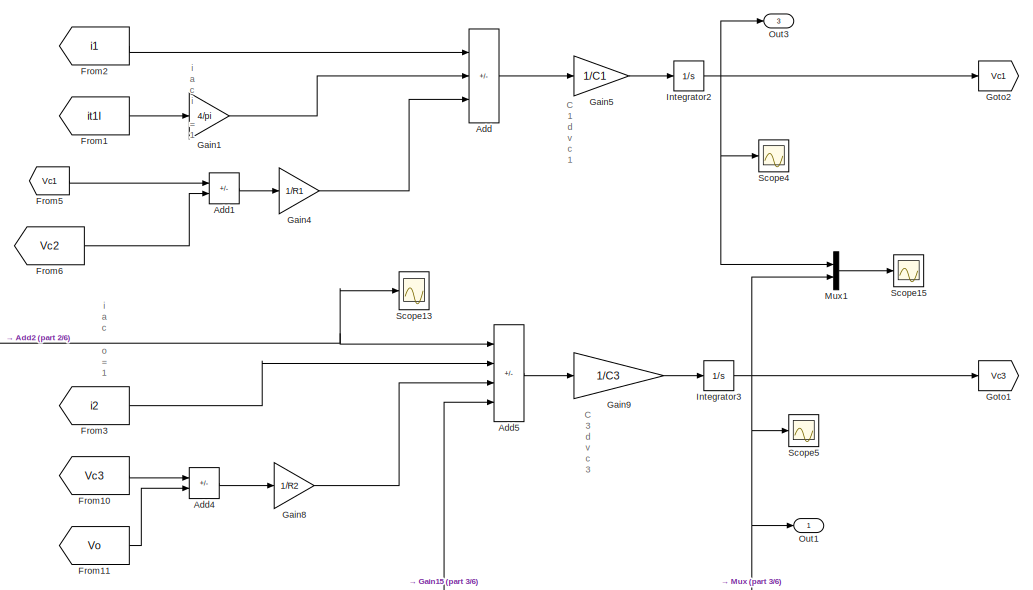
[diagram: root canvas - part 1/6, top right region]
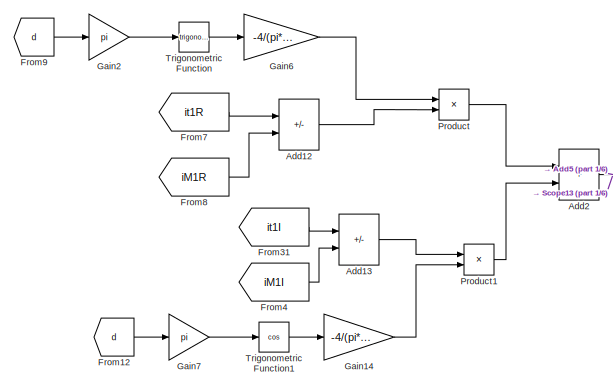
[diagram: root canvas - part 2/6, top center region]
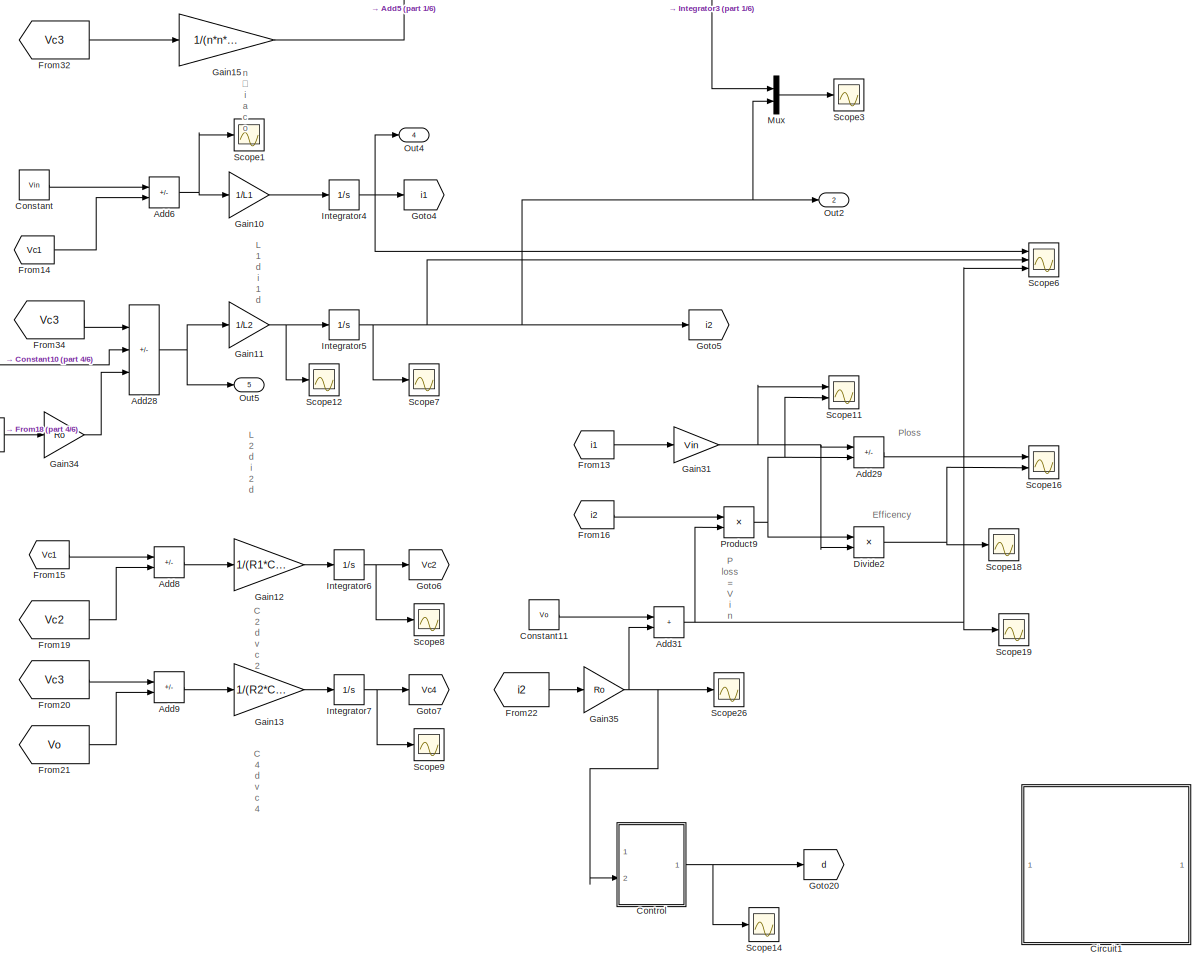
[diagram: root canvas - part 3/6, middle right region]
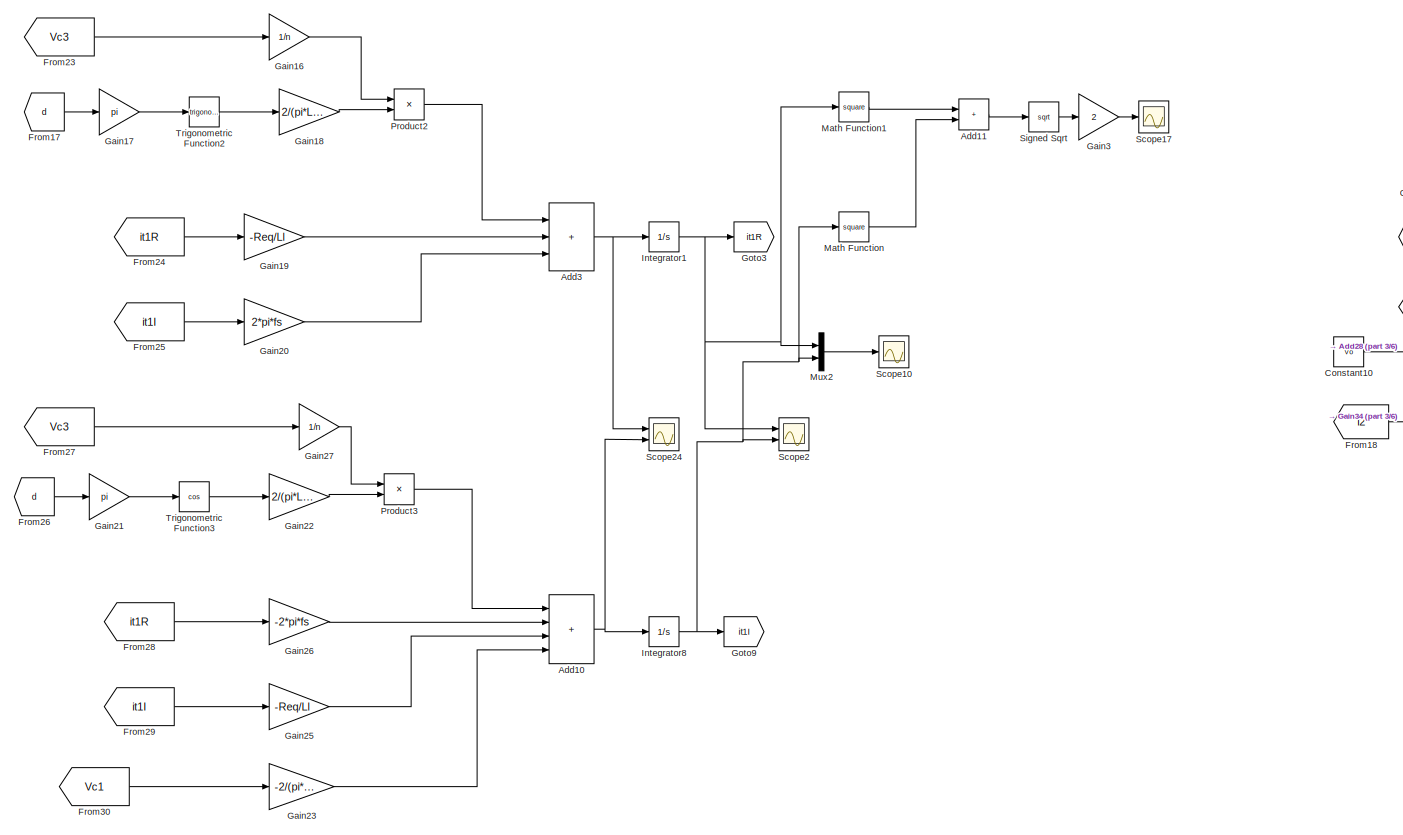
[diagram: root canvas - part 4/6, middle left region]
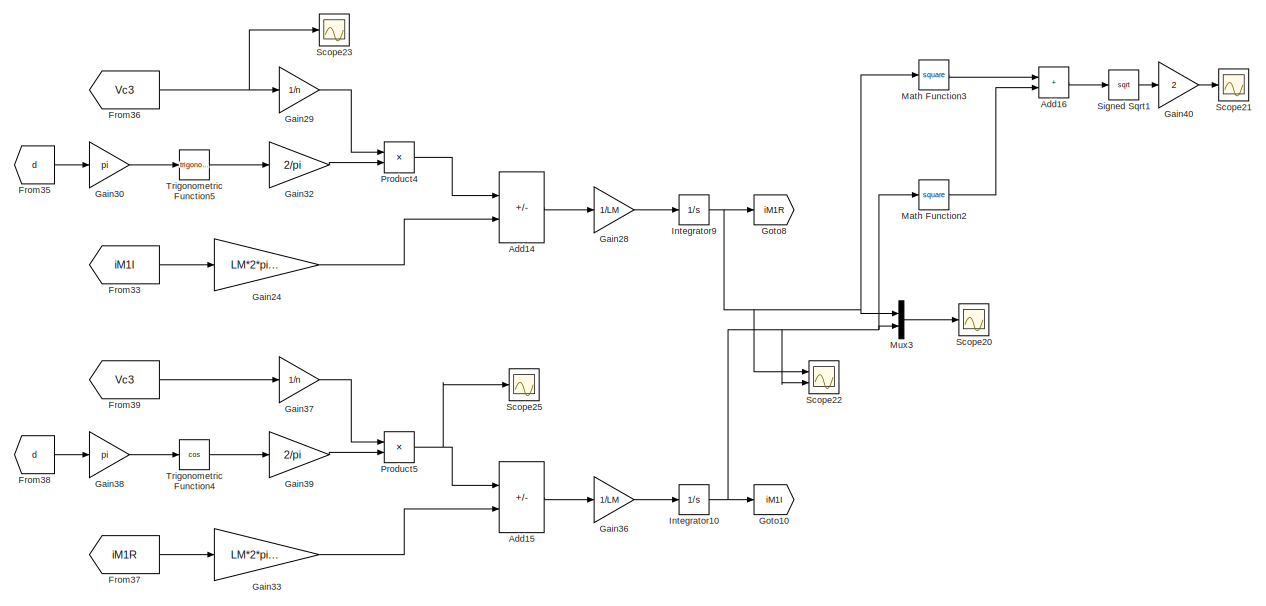
[diagram: root canvas - part 5/6, middle left region]
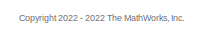
[diagram: root canvas - part 6/6, bottom right region]
MODEL slx_12599703ccd6
KIND model
CONFIG AbsTol = 1e-3
CONFIG EnableMultiTasking = on
CONFIG FixedStep = auto
CONFIG MaxStep = 1e-5
CONFIG MinStep = auto
CONFIG RelTol = 1e-3
CONFIG SampleTimeConstraint = Unconstrained
CONFIG SolverName = ode23tb
CONFIG StartTime = 0.0
CONFIG StopTime = Ts
BLOCK [Sum] Add
  IconShape = rectangular
  Inputs = ++-
  Ports = [3, 1]
BLOCK [Sum] Add1
  IconShape = rectangular
  Inputs = +-
  Ports = [2, 1]
BLOCK [Sum] Add10
  IconShape = rectangular
  Inputs = ++++
  Ports = [4, 1]
BLOCK [Sum] Add11
  IconShape = rectangular
  Ports = [2, 1]
BLOCK [Sum] Add12
  IconShape = rectangular
  Inputs = +-
  Ports = [2, 1]
BLOCK [Sum] Add13
  IconShape = rectangular
  Inputs = +-
  Ports = [2, 1]
BLOCK [Sum] Add14
  IconShape = rectangular
  Inputs = -+
  Ports = [2, 1]
BLOCK [Sum] Add15
  IconShape = rectangular
  Inputs = --
  Ports = [2, 1]
BLOCK [Sum] Add16
  IconShape = rectangular
  Ports = [2, 1]
BLOCK [Sum] Add2
  IconShape = rectangular
  Ports = [2, 1]
BLOCK [Sum] Add28
  IconShape = rectangular
  Inputs = +--
  Ports = [3, 1]
BLOCK [Sum] Add29
  IconShape = rectangular
  Inputs = +-
  Ports = [2, 1]
BLOCK [Sum] Add3
  IconShape = rectangular
  Inputs = +++
  Ports = [3, 1]
BLOCK [Sum] Add31
  IconShape = rectangular
  Ports = [2, 1]
BLOCK [Sum] Add4
  IconShape = rectangular
  Inputs = +-
  Ports = [2, 1]
BLOCK [Sum] Add5
  IconShape = rectangular
  Inputs = +---
  Ports = [4, 1]
BLOCK [Sum] Add6
  IconShape = rectangular
  Inputs = +-
  Ports = [2, 1]
BLOCK [Sum] Add8
  IconShape = rectangular
  Inputs = +-
  Ports = [2, 1]
BLOCK [Sum] Add9
  IconShape = rectangular
  Inputs = +-
  Ports = [2, 1]
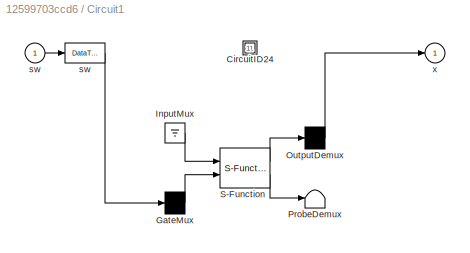
BLOCK [SubSystem] Circuit1
  CopyFcn = plecs('sl', 203);
  DeleteFcn = plecs('sl', 205);
  DestroyFcn = plecs('sl', 207);
  ErrorFcn = plerrorfcn
  InitFcn = plecs('sl', 214);
  LoadFcn = plecs('sl', 200);
  NameChangeFcn = plecs('sl', 210);
  OpenFcn = plecs('sl', 202);
  Ports = [1, 1]
  PostSaveFcn = plecs('sl', 201);
  PreCopyFcn = plecs('sl', 216);
  PreSaveFcn = plecs('sl', 211);
  RequestExecContextInheritance = off
  StartFcn = plecs('sl', 208);
  StopFcn = plecs('sl', 209);
  UndoDeleteFcn = plecs('sl', 206);
BLOCK [SubSystem] Circuit1/ CircuitID24 
  Ports = []
  RequestExecContextInheritance = off
BLOCK [Mux] Circuit1/ GateMux 
  Inputs = [ 8 ]
  Ports = [1, 1]
BLOCK [Ground] Circuit1/ InputMux 
BLOCK [Demux] Circuit1/ OutputDemux 
  Outputs = [ 1 ]
  Ports = [1, 1]
BLOCK [Terminator] Circuit1/ ProbeDemux 
BLOCK [S-Function] Circuit1/ S-Function 
  EnableBusSupport = off
  FunctionName = plecs
  Ports = [2, 2]
  SFcnIsStateOwnerBlock = off
  SFunctionDeploymentMode = off
BLOCK [DataTypeConversion] Circuit1/ sw 
BLOCK [Inport] Circuit1/sw
  PortDimensions = 8
BLOCK [Outport] Circuit1/x
  PortDimensions = 1
BLOCK [Constant] Constant
  Value = Vin
BLOCK [Constant] Constant10
  Value = Vo
BLOCK [Constant] Constant11
  Value = Vo
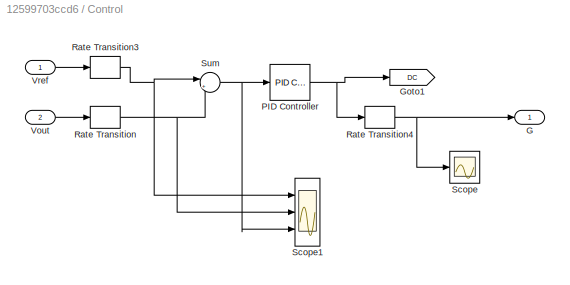
BLOCK [SubSystem] Control
  Ports = [2, 1]
  RequestExecContextInheritance = off
BLOCK [Outport] Control/G
  VectorParamsAs1DForOutWhenUnconnected = off
BLOCK [Goto] Control/Goto1
  GotoTag = DC
  TagVisibility = global
BLOCK [Reference] Control/PID Controller  REF=slpidlib/PID Controller
  Ports = [1, 1]
  SourceBlock = slpidlib/PID Controller
  SourceProductBaseCode = SL
  SourceType = PID 1dof
BLOCK [RateTransition] Control/Rate Transition
  OutPortSampleTime = 5e-8
BLOCK [RateTransition] Control/Rate Transition3
  OutPortSampleTime = 5e-8
BLOCK [RateTransition] Control/Rate Transition4
BLOCK [Scope] Control/Scope
  Floating = off
  NumInputPorts = 1
  Ports = [1]
  ScopeSpecificationString = Simulink.scopes.TimeScopeBlockCfg('CurrentConfiguration', extmgr.ConfigurationSet(extmgr.Configuration('Core','General UI',true),extmgr.Configuration('Core','Source UI',true),extmgr.Configuration('Sources','WiredSimulink',true,'DataLoggingVariableName','ScopeData1'),extmgr.Configuration('Visuals','Time Domain',true,'SerializedDisplays',{struct('MinYLimReal','-0.04578','MaxYLimReal','0.412','YLabel...<+1468ch>
BLOCK [Scope] Control/Scope1
  Floating = off
  NumInputPorts = 3
  Ports = [3]
  ScopeSpecificationString = Simulink.scopes.TimeScopeBlockCfg('CurrentConfiguration', extmgr.ConfigurationSet(extmgr.Configuration('Core','General UI',true),extmgr.Configuration('Core','Source UI',true),extmgr.Configuration('Sources','WiredSimulink',true,'DataLoggingVariableName','ScopeData2'),extmgr.Configuration('Visuals','Time Domain',true,'SerializedDisplays',{struct('MinYLimReal','-1.00000','MaxYLimReal','1.00000','YLab...<+2820ch>
BLOCK [Sum] Control/Sum
  Inputs = |+-
  Ports = [2, 1]
BLOCK [Inport] Control/Vout
  Port = 2
BLOCK [Inport] Control/Vref
BLOCK [Product] Divide2
  Inputs = */
  Ports = [2, 1]
BLOCK [From] From1
  GotoTag = it1I
BLOCK [From] From10
  GotoTag = Vc3
BLOCK [From] From11
  GotoTag = Vo
BLOCK [From] From12
  GotoTag = d
BLOCK [From] From13
  GotoTag = i1
BLOCK [From] From14
  GotoTag = Vc1
BLOCK [From] From15
  GotoTag = Vc1
BLOCK [From] From16
  GotoTag = i2
BLOCK [From] From17
  GotoTag = d
BLOCK [From] From18
  GotoTag = i2
BLOCK [From] From19
  GotoTag = Vc2
BLOCK [From] From2
  GotoTag = i1
BLOCK [From] From20
  GotoTag = Vc3
BLOCK [From] From21
  GotoTag = Vo
BLOCK [From] From22
  GotoTag = i2
BLOCK [From] From23
  GotoTag = Vc3
BLOCK [From] From24
  GotoTag = it1R
BLOCK [From] From25
  GotoTag = it1I
BLOCK [From] From26
  GotoTag = d
BLOCK [From] From27
  GotoTag = Vc3
BLOCK [From] From28
  GotoTag = it1R
BLOCK [From] From29
  GotoTag = it1I
BLOCK [From] From3
  GotoTag = i2
BLOCK [From] From30
  GotoTag = Vc1
BLOCK [From] From31
  GotoTag = it1I
BLOCK [From] From32
  GotoTag = Vc3
BLOCK [From] From33
  GotoTag = iM1I
BLOCK [From] From34
  GotoTag = Vc3
BLOCK [From] From35
  GotoTag = d
BLOCK [From] From36
  GotoTag = Vc3
BLOCK [From] From37
  GotoTag = iM1R
BLOCK [From] From38
  GotoTag = d
BLOCK [From] From39
  GotoTag = Vc3
BLOCK [From] From4
  GotoTag = iM1I
BLOCK [From] From5
  GotoTag = Vc1
BLOCK [From] From6
  GotoTag = Vc2
BLOCK [From] From7
  GotoTag = it1R
BLOCK [From] From8
  GotoTag = iM1R
BLOCK [From] From9
  GotoTag = d
BLOCK [Gain] Gain1
  Gain = 4/pi
BLOCK [Gain] Gain10
  Gain = 1/L1
BLOCK [Gain] Gain11
  Gain = 1/L2
BLOCK [Gain] Gain12
  Gain = 1/(R1*C2)
BLOCK [Gain] Gain13
  Gain = 1/(R2*C4)
BLOCK [Gain] Gain14
  Gain = -4/(pi*n)
BLOCK [Gain] Gain15
  Gain = 1/(n*n*RM)
BLOCK [Gain] Gain16
  Gain = 1/n
BLOCK [Gain] Gain17
  Gain = pi
BLOCK [Gain] Gain18
  Gain = 2/(pi*Ll)
BLOCK [Gain] Gain19
  Gain = -Req/Ll
BLOCK [Gain] Gain2
  Gain = pi
BLOCK [Gain] Gain20
  Gain = 2*pi*fs
BLOCK [Gain] Gain21
  Gain = pi
BLOCK [Gain] Gain22
  Gain = 2/(pi*Ll)
BLOCK [Gain] Gain23
  Gain = -2/(pi*Ll)
BLOCK [Gain] Gain24
  Gain = LM*2*pi*fs
BLOCK [Gain] Gain25
  Gain = -Req/Ll
BLOCK [Gain] Gain26
  Gain = -2*pi*fs
BLOCK [Gain] Gain27
  Gain = 1/n
BLOCK [Gain] Gain28
  Gain = 1/LM
BLOCK [Gain] Gain29
  Gain = 1/n
BLOCK [Gain] Gain3
  Gain = 2
BLOCK [Gain] Gain30
  Gain = pi
BLOCK [Gain] Gain31
  Gain = Vin
BLOCK [Gain] Gain32
  Gain = 2/pi
BLOCK [Gain] Gain33
  Gain = LM*2*pi*fs
BLOCK [Gain] Gain34
  Gain = Ro
BLOCK [Gain] Gain35
  Gain = Ro
BLOCK [Gain] Gain36
  Gain = 1/LM
BLOCK [Gain] Gain37
  Gain = 1/n
BLOCK [Gain] Gain38
  Gain = pi
BLOCK [Gain] Gain39
  Gain = 2/pi
BLOCK [Gain] Gain4
  Gain = 1/R1
BLOCK [Gain] Gain40
  Gain = 2
BLOCK [Gain] Gain5
  Gain = 1/C1
BLOCK [Gain] Gain6
  Gain = -4/(pi*n)
BLOCK [Gain] Gain7
  Gain = pi
BLOCK [Gain] Gain8
  Gain = 1/R2
BLOCK [Gain] Gain9
  Gain = 1/C3
BLOCK [Goto] Goto1
  GotoTag = Vc3
BLOCK [Goto] Goto10
  GotoTag = iM1I
BLOCK [Goto] Goto2
  GotoTag = Vc1
BLOCK [Goto] Goto20
  GotoTag = d
BLOCK [Goto] Goto3
  GotoTag = it1R
BLOCK [Goto] Goto4
  GotoTag = i1
BLOCK [Goto] Goto5
  GotoTag = i2
BLOCK [Goto] Goto6
  GotoTag = Vc2
BLOCK [Goto] Goto7
  GotoTag = Vc4
BLOCK [Goto] Goto8
  GotoTag = iM1R
BLOCK [Goto] Goto9
  GotoTag = it1I
BLOCK [Integrator] Integrator1
  Ports = [1, 1]
BLOCK [Integrator] Integrator10
  Ports = [1, 1]
BLOCK [Integrator] Integrator2
  InitialCondition = Vin
  Ports = [1, 1]
BLOCK [Integrator] Integrator3
  InitialCondition = Vo
  Ports = [1, 1]
BLOCK [Integrator] Integrator4
  Ports = [1, 1]
BLOCK [Integrator] Integrator5
  Ports = [1, 1]
BLOCK [Integrator] Integrator6
  InitialCondition = Vin
  Ports = [1, 1]
BLOCK [Integrator] Integrator7
  InitialCondition = Vo
  Ports = [1, 1]
BLOCK [Integrator] Integrator8
  Ports = [1, 1]
BLOCK [Integrator] Integrator9
  Ports = [1, 1]
BLOCK [Math] Math Function
  Operator = square
  Ports = [1, 1]
  SignedPower = on
BLOCK [Math] Math Function1
  Operator = square
  Ports = [1, 1]
  SignedPower = on
BLOCK [Math] Math Function2
  Operator = square
  Ports = [1, 1]
  SignedPower = on
BLOCK [Math] Math Function3
  Operator = square
  Ports = [1, 1]
  SignedPower = on
BLOCK [Mux] Mux
  DisplayOption = bar
  Inputs = 2
  Ports = [2, 1]
BLOCK [Mux] Mux1
  DisplayOption = bar
  Inputs = 2
  Ports = [2, 1]
BLOCK [Mux] Mux2
  DisplayOption = bar
  Inputs = 2
  Ports = [2, 1]
BLOCK [Mux] Mux3
  DisplayOption = bar
  Inputs = 2
  Ports = [2, 1]
BLOCK [Outport] Out1
BLOCK [Outport] Out2
  Port = 2
BLOCK [Outport] Out3
  Port = 3
BLOCK [Outport] Out4
  Port = 4
BLOCK [Outport] Out5
  Port = 5
BLOCK [Product] Product
  Ports = [2, 1]
  RndMeth = Zero
BLOCK [Product] Product1
  Ports = [2, 1]
  RndMeth = Zero
BLOCK [Product] Product2
  Ports = [2, 1]
  RndMeth = Zero
BLOCK [Product] Product3
  Ports = [2, 1]
  RndMeth = Zero
BLOCK [Product] Product4
  Ports = [2, 1]
  RndMeth = Zero
BLOCK [Product] Product5
  Ports = [2, 1]
  RndMeth = Zero
BLOCK [Product] Product9
  Ports = [2, 1]
  RndMeth = Zero
BLOCK [Scope] Scope1
  Floating = off
  NumInputPorts = 1
  Ports = [1]
  ScopeSpecificationString = C++SS(StrPVP('Location','[5, 52, 1685, 1019]'),StrPVP('Open','off'),StrPVP('ZoomMode','xonly'),MxPVP('AxesTitles',54,'struct(''axes1'',''%<SignalLabel>'')'),MxPVP('ScopeGraphics',57,'struct(''FigureColor'',''[0.5 0.5 0.5]'',''AxesColor'',''[0 0 0]'',''AxesTickColor'',''[1 1 1]'',''LineColors'',''[1 1 0;1 0 1;0 1 1;1 0 0;0 1 0;0 0 1]'',''LineStyles'',''-|-|-|-|-|-'',''LineWidths'',''[0.5 0.5 0.5 0....<+266ch>
BLOCK [Scope] Scope10
  Floating = off
  NumInputPorts = 1
  Ports = [1]
  ScopeSpecificationString = C++SS(StrPVP('Location','[395, 52, 1675, 959]'),StrPVP('Open','off'),StrPVP('ZoomMode','xonly'),MxPVP('AxesTitles',54,'struct(''axes1'',''%<SignalLabel>'')'),MxPVP('ScopeGraphics',57,'struct(''FigureColor'',''[0.5 0.5 0.5]'',''AxesColor'',''[0 0 0]'',''AxesTickColor'',''[1 1 1]'',''LineColors'',''[1 1 0;1 0 1;0 1 1;1 0 0;0 1 0;0 0 1]'',''LineStyles'',''-|-|-|-|-|-'',''LineWidths'',''[0.5 0.5 0.5 0...<+299ch>
BLOCK [Scope] Scope11
  Floating = off
  NumInputPorts = 2
  Ports = [2]
  ScopeSpecificationString = Simulink.scopes.TimeScopeBlockCfg('CurrentConfiguration', extmgr.ConfigurationSet(extmgr.Configuration('Core','General UI',true),extmgr.Configuration('Core','Source UI',true),extmgr.Configuration('Sources','WiredSimulink',true,'DataLoggingVariableName','ScopeData10','DataLoggingSaveFormat','StructureWithTime','DataLoggingDecimation','1','DataLoggingDecimateData',true),extmgr.Configuration('Visuals...<+2331ch>
BLOCK [Scope] Scope12
  Floating = off
  NumInputPorts = 1
  Ports = [1]
  ScopeSpecificationString = C++SS(StrPVP('Location','[395, 52, 1675, 959]'),StrPVP('Open','off'),StrPVP('ZoomMode','yonly'),MxPVP('AxesTitles',54,'struct(''axes1'',''%<SignalLabel>'')'),MxPVP('ScopeGraphics',57,'struct(''FigureColor'',''[0.5 0.5 0.5]'',''AxesColor'',''[0 0 0]'',''AxesTickColor'',''[1 1 1]'',''LineColors'',''[1 1 0;1 0 1;0 1 1;1 0 0;0 1 0;0 0 1]'',''LineStyles'',''-|-|-|-|-|-'',''LineWidths'',''[0.5 0.5 0.5 0...<+385ch>
BLOCK [Scope] Scope13
  Floating = off
  NumInputPorts = 1
  Ports = [1]
  ScopeSpecificationString = C++SS(StrPVP('Location','[5, 52, 1685, 1019]'),StrPVP('Open','off'),StrPVP('ZoomMode','xonly'),MxPVP('AxesTitles',54,'struct(''axes1'',''%<SignalLabel>'')'),MxPVP('ScopeGraphics',57,'struct(''FigureColor'',''[0.5 0.5 0.5]'',''AxesColor'',''[0 0 0]'',''AxesTickColor'',''[1 1 1]'',''LineColors'',''[1 1 0;1 0 1;0 1 1;1 0 0;0 1 0;0 0 1]'',''LineStyles'',''-|-|-|-|-|-'',''LineWidths'',''[0.5 0.5 0.5 0....<+299ch>
BLOCK [Scope] Scope14
  Floating = off
  NumInputPorts = 1
  Ports = [1]
  ScopeSpecificationString = Simulink.scopes.TimeScopeBlockCfg('CurrentConfiguration', extmgr.ConfigurationSet(extmgr.Configuration('Core','General UI',true),extmgr.Configuration('Core','Source UI',true),extmgr.Configuration('Sources','WiredSimulink',true,'DataLoggingVariableName','ScopeData1'),extmgr.Configuration('Visuals','Time Domain',true,'SerializedDisplays',{struct('MinYLimReal','-1.00000','MaxYLimReal','1.00000','YLab...<+1984ch>
BLOCK [Scope] Scope15
  Floating = off
  NumInputPorts = 1
  Ports = [1]
  ScopeSpecificationString = Simulink.scopes.TimeScopeBlockCfg('CurrentConfiguration', extmgr.ConfigurationSet(extmgr.Configuration('Core','General UI',true),extmgr.Configuration('Core','Source UI',true),extmgr.Configuration('Sources','WiredSimulink',true,'DataLoggingVariableName','ScopeData14','DataLoggingSaveFormat','StructureWithTime','DataLoggingDecimation','1','DataLoggingDecimateData',true),extmgr.Configuration('Visuals...<+1697ch>
BLOCK [Scope] Scope16
  Floating = off
  NumInputPorts = 2
  Ports = [2]
  ScopeSpecificationString = Simulink.scopes.TimeScopeBlockCfg('CurrentConfiguration', extmgr.ConfigurationSet(extmgr.Configuration('Core','General UI',true),extmgr.Configuration('Core','Source UI',true),extmgr.Configuration('Sources','WiredSimulink',true,'DataLoggingVariableName','ScopeData17','DataLoggingSaveFormat','StructureWithTime','DataLoggingDecimation','1','DataLoggingDecimateData',true),extmgr.Configuration('Visuals...<+2335ch>
BLOCK [Scope] Scope17
  Floating = off
  NumInputPorts = 1
  Ports = [1]
  ScopeSpecificationString = Simulink.scopes.TimeScopeBlockCfg('CurrentConfiguration', extmgr.ConfigurationSet(extmgr.Configuration('Core','General UI',true),extmgr.Configuration('Core','Source UI',true),extmgr.Configuration('Sources','WiredSimulink',true,'DataLoggingVariableName','ScopeData15','DataLoggingSaveFormat','StructureWithTime','DataLoggingDecimation','1','DataLoggingDecimateData',true),extmgr.Configuration('Visuals...<+1641ch>
BLOCK [Scope] Scope18
  Floating = off
  NumInputPorts = 1
  Ports = [1]
  ScopeSpecificationString = Simulink.scopes.TimeScopeBlockCfg('CurrentConfiguration', extmgr.ConfigurationSet(extmgr.Configuration('Core','General UI',true),extmgr.Configuration('Core','Source UI',true),extmgr.Configuration('Sources','WiredSimulink',true,'DataLoggingVariableName','ScopeData18','DataLoggingSaveFormat','StructureWithTime','DataLoggingDecimation','1','DataLoggingDecimateData',true),extmgr.Configuration('Visuals...<+1647ch>
BLOCK [Scope] Scope19
  Floating = off
  NumInputPorts = 1
  Ports = [1]
  ScopeSpecificationString = Simulink.scopes.TimeScopeBlockCfg('CurrentConfiguration', extmgr.ConfigurationSet(extmgr.Configuration('Core','General UI',true),extmgr.Configuration('Core','Source UI',true),extmgr.Configuration('Sources','WiredSimulink',true,'DataLoggingVariableName','ScopeData19','DataLoggingSaveFormat','StructureWithTime','DataLoggingDecimation','1','DataLoggingDecimateData',true),extmgr.Configuration('Visuals...<+879ch>
BLOCK [Scope] Scope2
  Floating = off
  NumInputPorts = 2
  Ports = [2]
  ScopeSpecificationString = C++SS(StrPVP('Location','[5, 52, 1685, 1019]'),StrPVP('Open','off'),StrPVP('ZoomMode','yonly'),MxPVP('AxesTitles',54,'struct(''axes1'',''%<SignalLabel>'',''axes2'',''%<SignalLabel>'')'),MxPVP('ScopeGraphics',57,'struct(''FigureColor'',''[0.5 0.5 0.5]'',''AxesColor'',''[0 0 0]'',''AxesTickColor'',''[1 1 1]'',''LineColors'',''[1 1 0;1 0 1;0 1 1;1 0 0;0 1 0;0 0 1]'',''LineStyles'',''-|-|-|-|-|-'',''L...<+371ch>
BLOCK [Scope] Scope20
  Floating = off
  NumInputPorts = 1
  Ports = [1]
  ScopeSpecificationString = C++SS(StrPVP('Location','[395, 52, 1675, 959]'),StrPVP('Open','off'),MxPVP('AxesTitles',54,'struct(''axes1'',''%<SignalLabel>'')'),MxPVP('ScopeGraphics',57,'struct(''FigureColor'',''[0.5 0.5 0.5]'',''AxesColor'',''[0 0 0]'',''AxesTickColor'',''[1 1 1]'',''LineColors'',''[1 1 0;1 0 1;0 1 1;1 0 0;0 1 0;0 0 1]'',''LineStyles'',''-|-|-|-|-|-'',''LineWidths'',''[0.5 0.5 0.5 0.5 0.5 0.5]'',''MarkerStyle...<+273ch>
BLOCK [Scope] Scope21
  Floating = off
  NumInputPorts = 1
  Ports = [1]
  ScopeSpecificationString = C++SS(StrPVP('Location','[395, 52, 1675, 959]'),StrPVP('Open','off'),StrPVP('ZoomMode','xonly'),MxPVP('AxesTitles',54,'struct(''axes1'',''%<SignalLabel>'')'),MxPVP('ScopeGraphics',57,'struct(''FigureColor'',''[0.5 0.5 0.5]'',''AxesColor'',''[0 0 0]'',''AxesTickColor'',''[1 1 1]'',''LineColors'',''[1 1 0;1 0 1;0 1 1;1 0 0;0 1 0;0 0 1]'',''LineStyles'',''-|-|-|-|-|-'',''LineWidths'',''[0.5 0.5 0.5 0...<+300ch>
BLOCK [Scope] Scope22
  Floating = off
  NumInputPorts = 2
  Ports = [2]
  ScopeSpecificationString = Simulink.scopes.TimeScopeBlockCfg('CurrentConfiguration', extmgr.ConfigurationSet(extmgr.Configuration('Core','General UI',true),extmgr.Configuration('Core','Source UI',true),extmgr.Configuration('Sources','WiredSimulink',true,'DataLoggingVariableName','ScopeData21','DataLoggingSaveFormat','StructureWithTime','DataLoggingDecimation','1','DataLoggingDecimateData',true),extmgr.Configuration('Visuals...<+2346ch>
BLOCK [Scope] Scope23
  Floating = off
  NumInputPorts = 1
  Ports = [1]
  ScopeSpecificationString = C++SS(StrPVP('Location','[395, 52, 1675, 959]'),StrPVP('Open','off'),StrPVP('ZoomMode','yonly'),MxPVP('AxesTitles',54,'struct(''axes1'',''%<SignalLabel>'')'),MxPVP('ScopeGraphics',57,'struct(''FigureColor'',''[0.5 0.5 0.5]'',''AxesColor'',''[0 0 0]'',''AxesTickColor'',''[1 1 1]'',''LineColors'',''[1 1 0;1 0 1;0 1 1;1 0 0;0 1 0;0 0 1]'',''LineStyles'',''-|-|-|-|-|-'',''LineWidths'',''[0.5 0.5 0.5 0...<+350ch>
BLOCK [Scope] Scope24
  Floating = off
  NumInputPorts = 2
  Ports = [2]
  ScopeSpecificationString = C++SS(StrPVP('Location','[1, 52, 1681, 1019]'),StrPVP('Open','off'),StrPVP('ZoomMode','yonly'),MxPVP('AxesTitles',54,'struct(''axes1'',''%<SignalLabel>'',''axes2'',''%<SignalLabel>'')'),MxPVP('ScopeGraphics',57,'struct(''FigureColor'',''[0.5 0.5 0.5]'',''AxesColor'',''[0 0 0]'',''AxesTickColor'',''[1 1 1]'',''LineColors'',''[1 1 0;1 0 1;0 1 1;1 0 0;0 1 0;0 0 1]'',''LineStyles'',''-|-|-|-|-|-'',''L...<+372ch>
BLOCK [Scope] Scope25
  Floating = off
  NumInputPorts = 1
  Ports = [1]
  ScopeSpecificationString = C++SS(StrPVP('Location','[395, 52, 1675, 959]'),StrPVP('Open','off'),MxPVP('AxesTitles',54,'struct(''axes1'',''%<SignalLabel>'')'),MxPVP('ScopeGraphics',57,'struct(''FigureColor'',''[0.5 0.5 0.5]'',''AxesColor'',''[0 0 0]'',''AxesTickColor'',''[1 1 1]'',''LineColors'',''[1 1 0;1 0 1;0 1 1;1 0 0;0 1 0;0 0 1]'',''LineStyles'',''-|-|-|-|-|-'',''LineWidths'',''[0.5 0.5 0.5 0.5 0.5 0.5]'',''MarkerStyle...<+273ch>
BLOCK [Scope] Scope26
  Floating = off
  NumInputPorts = 1
  Ports = [1]
  ScopeSpecificationString = Simulink.scopes.TimeScopeBlockCfg('CurrentConfiguration', extmgr.ConfigurationSet(extmgr.Configuration('Core','General UI',true),extmgr.Configuration('Core','Source UI',true),extmgr.Configuration('Sources','WiredSimulink',true,'DataLoggingVariableName','ScopeData1'),extmgr.Configuration('Visuals','Time Domain',true,'SerializedDisplays',{struct('MinYLimReal','-9.56857','MaxYLimReal','1.06317','YLab...<+1983ch>
BLOCK [Scope] Scope3
  Floating = off
  NumInputPorts = 1
  Ports = [1]
  ScopeSpecificationString = Simulink.scopes.TimeScopeBlockCfg('CurrentConfiguration', extmgr.ConfigurationSet(extmgr.Configuration('Core','General UI',true),extmgr.Configuration('Core','Source UI',true),extmgr.Configuration('Sources','WiredSimulink',true,'DataLoggingVariableName','ScopeData4','DataLoggingSaveFormat','StructureWithTime','DataLoggingDecimation','1','DataLoggingDecimateData',true),extmgr.Configuration('Visuals'...<+1666ch>
BLOCK [Scope] Scope4
  Floating = off
  NumInputPorts = 1
  Ports = [1]
  ScopeSpecificationString = Simulink.scopes.TimeScopeBlockCfg('CurrentConfiguration', extmgr.ConfigurationSet(extmgr.Configuration('Core','General UI',true),extmgr.Configuration('Core','Source UI',true),extmgr.Configuration('Sources','WiredSimulink',true,'DataLoggingVariableName','ScopeData1','DataLoggingSaveFormat','StructureWithTime','DataLoggingDecimation','1','DataLoggingDecimateData',true),extmgr.Configuration('Visuals'...<+1778ch>
BLOCK [Scope] Scope5
  Floating = off
  NumInputPorts = 1
  Ports = [1]
  ScopeSpecificationString = C++SS(StrPVP('Location','[5, 52, 1685, 1019]'),StrPVP('Open','off'),StrPVP('ZoomMode','xonly'),MxPVP('AxesTitles',54,'struct(''axes1'',''%<SignalLabel>'')'),MxPVP('ScopeGraphics',57,'struct(''FigureColor'',''[0.5 0.5 0.5]'',''AxesColor'',''[0 0 0]'',''AxesTickColor'',''[1 1 1]'',''LineColors'',''[1 1 0;1 0 1;0 1 1;1 0 0;0 1 0;0 0 1]'',''LineStyles'',''-|-|-|-|-|-'',''LineWidths'',''[0.5 0.5 0.5 0....<+342ch>
BLOCK [Scope] Scope6
  Floating = off
  NumInputPorts = 3
  Ports = [3]
  ScopeSpecificationString = Simulink.scopes.TimeScopeBlockCfg('CurrentConfiguration', extmgr.ConfigurationSet(extmgr.Configuration('Core','General UI',true),extmgr.Configuration('Core','Source UI',true),extmgr.Configuration('Sources','WiredSimulink',true,'DataLoggingVariableName','ScopeData6','DataLoggingSaveFormat','StructureWithTime','DataLoggingDecimation','1','DataLoggingDecimateData',true),extmgr.Configuration('Visuals'...<+3027ch>
BLOCK [Scope] Scope7
  Floating = off
  NumInputPorts = 1
  Ports = [1]
  ScopeSpecificationString = C++SS(StrPVP('Location','[5, 52, 1685, 1019]'),StrPVP('Open','off'),MxPVP('AxesTitles',54,'struct(''axes1'',''%<SignalLabel>'')'),MxPVP('ScopeGraphics',57,'struct(''FigureColor'',''[0.5 0.5 0.5]'',''AxesColor'',''[0 0 0]'',''AxesTickColor'',''[1 1 1]'',''LineColors'',''[1 1 0;1 0 1;0 1 1;1 0 0;0 1 0;0 0 1]'',''LineStyles'',''-|-|-|-|-|-'',''LineWidths'',''[0.5 0.5 0.5 0.5 0.5 0.5]'',''MarkerStyles...<+356ch>
BLOCK [Scope] Scope8
  Floating = off
  NumInputPorts = 1
  Ports = [1]
  ScopeSpecificationString = C++SS(StrPVP('Location','[395, 52, 1675, 959]'),StrPVP('Open','off'),StrPVP('ZoomMode','yonly'),MxPVP('AxesTitles',54,'struct(''axes1'',''%<SignalLabel>'')'),MxPVP('ScopeGraphics',57,'struct(''FigureColor'',''[0.5 0.5 0.5]'',''AxesColor'',''[0 0 0]'',''AxesTickColor'',''[1 1 1]'',''LineColors'',''[1 1 0;1 0 1;0 1 1;1 0 0;0 1 0;0 0 1]'',''LineStyles'',''-|-|-|-|-|-'',''LineWidths'',''[0.5 0.5 0.5 0...<+299ch>
BLOCK [Scope] Scope9
  Floating = off
  NumInputPorts = 1
  Ports = [1]
  ScopeSpecificationString = C++SS(StrPVP('Location','[1, 52, 1681, 1019]'),StrPVP('Open','off'),StrPVP('ZoomMode','yonly'),MxPVP('AxesTitles',54,'struct(''axes1'',''%<SignalLabel>'')'),MxPVP('ScopeGraphics',57,'struct(''FigureColor'',''[0.5 0.5 0.5]'',''AxesColor'',''[0 0 0]'',''AxesTickColor'',''[1 1 1]'',''LineColors'',''[1 1 0;1 0 1;0 1 1;1 0 0;0 1 0;0 0 1]'',''LineStyles'',''-|-|-|-|-|-'',''LineWidths'',''[0.5 0.5 0.5 0....<+298ch>
BLOCK [Sqrt] Signed Sqrt
BLOCK [Sqrt] Signed Sqrt1
BLOCK [Trigonometry] Trigonometric Function
  Ports = [1, 1]
BLOCK [Trigonometry] Trigonometric Function1
  Operator = cos
  Ports = [1, 1]
BLOCK [Trigonometry] Trigonometric Function2
  Ports = [1, 1]
BLOCK [Trigonometry] Trigonometric Function3
  Operator = cos
  Ports = [1, 1]
BLOCK [Trigonometry] Trigonometric Function4
  Operator = cos
  Ports = [1, 1]
BLOCK [Trigonometry] Trigonometric Function5
  Ports = [1, 1]
ANNOTATION (root): <copyright redacted>
ANNOTATION (root): n ⋅ i a c o = 1 T ∫ 0 d T − i α d τ + ∫ d T T i β d τ − v c 3 n ⋅ R M
ANNOTATION (root): C 1 d v c 1 d τ = i 1 − i a c i − v c 1 − v c 2 R 1
ANNOTATION (root): C 2 d v c 2 d τ = v c 1 − v c 2 R 1
ANNOTATION (root): C 3 d v c 3 d τ = i a c o − i 2 − v c 3 − v c 4 R 2
ANNOTATION (root): C 4 d v c 4 d τ = v c 3 − v c 4 R 2
ANNOTATION (root): L 1 d i 1 d τ = v i s − v c 1
ANNOTATION (root): L 2 d i 2 d τ = v c 3 − v o s − i 2 R o
ANNOTATION (root): i a c i = 1 T ∫ 0 d T i α d τ + ∫ d T T i β d τ
ANNOTATION (root): i a c o = 1 n T ∫ 0 d T − i α d τ + ∫ d T T i β d τ
ANNOTATION (root): P loss = V i n ⋅ i 1 − v o ⋅ i 2 V i n = V i s v o = V o s + i 2 ⋅ R o
ANNOTATION (root): Efficency
ANNOTATION (root): Ploss
NET Add10:1 -> Integrator8:1, Scope24:2
LINE Add11:1 -> Signed Sqrt:1
LINE Add12:1 -> Product:2
LINE Add13:1 -> Product1:1
LINE Add14:1 -> Gain28:1
LINE Add15:1 -> Gain36:1
LINE Add16:1 -> Signed Sqrt1:1
LINE Add1:1 -> Gain4:1
NET Add28:1 -> Gain11:1, Out5:1
LINE Add29:1 -> Scope16:1
NET Add2:1 -> Add5:1, Scope13:1
NET Add31:1 -> Product9:2, Scope19:1, Scope6:3
NET Add3:1 -> Integrator1:1, Scope24:1
LINE Add4:1 -> Gain8:1
LINE Add5:1 -> Gain9:1
NET Add6:1 -> Gain10:1, Scope1:1
LINE Add8:1 -> Gain12:1
LINE Add9:1 -> Gain13:1
LINE Add:1 -> Gain5:1
LINE Constant10:1 -> Add28:2
LINE Constant11:1 -> Add31:1
LINE Constant:1 -> Add6:1
NET Control/PID Controller:1 -> Control/Goto1:1, Control/Rate Transition4:1
NET Control/Rate Transition3:1 -> Control/Scope1:1, Control/Sum:1
NET Control/Rate Transition4:1 -> Control/G:1, Control/Scope:1
NET Control/Rate Transition:1 -> Control/Scope1:2, Control/Sum:2
NET Control/Sum:1 -> Control/PID Controller:1, Control/Scope1:3
LINE Control/Vout:1 -> Control/Rate Transition:1
LINE Control/Vref:1 -> Control/Rate Transition3:1
NET Control:1 -> Goto20:1, Scope14:1
NET Divide2:1 -> Scope16:2, Scope18:1
LINE From10:1 -> Add4:1
LINE From11:1 -> Add4:2
LINE From12:1 -> Gain7:1
LINE From13:1 -> Gain31:1
LINE From14:1 -> Add6:2
LINE From15:1 -> Add8:1
LINE From16:1 -> Product9:1
LINE From17:1 -> Gain17:1
LINE From18:1 -> Gain34:1
LINE From19:1 -> Add8:2
LINE From1:1 -> Gain1:1
LINE From20:1 -> Add9:1
LINE From21:1 -> Add9:2
LINE From22:1 -> Gain35:1
LINE From23:1 -> Gain16:1
LINE From24:1 -> Gain19:1
LINE From25:1 -> Gain20:1
LINE From26:1 -> Gain21:1
LINE From27:1 -> Gain27:1
LINE From28:1 -> Gain26:1
LINE From29:1 -> Gain25:1
LINE From2:1 -> Add:1
LINE From30:1 -> Gain23:1
LINE From31:1 -> Add13:1
LINE From32:1 -> Gain15:1
LINE From33:1 -> Gain24:1
LINE From34:1 -> Add28:1
LINE From35:1 -> Gain30:1
NET From36:1 -> Gain29:1, Scope23:1
LINE From37:1 -> Gain33:1
LINE From38:1 -> Gain38:1
LINE From39:1 -> Gain37:1
LINE From3:1 -> Add5:2
LINE From4:1 -> Add13:2
LINE From5:1 -> Add1:1
LINE From6:1 -> Add1:2
LINE From7:1 -> Add12:1
LINE From8:1 -> Add12:2
LINE From9:1 -> Gain2:1
LINE Gain10:1 -> Integrator4:1
NET Gain11:1 -> Integrator5:1, Scope12:1
LINE Gain12:1 -> Integrator6:1
LINE Gain13:1 -> Integrator7:1
LINE Gain14:1 -> Product1:2
LINE Gain15:1 -> Add5:4
LINE Gain16:1 -> Product2:1
LINE Gain17:1 -> Trigonometric Function2:1
LINE Gain18:1 -> Product2:2
LINE Gain19:1 -> Add3:2
LINE Gain1:1 -> Add:2
LINE Gain20:1 -> Add3:3
LINE Gain21:1 -> Trigonometric Function3:1
LINE Gain22:1 -> Product3:2
LINE Gain23:1 -> Add10:4
LINE Gain24:1 -> Add14:2
LINE Gain25:1 -> Add10:3
LINE Gain26:1 -> Add10:2
LINE Gain27:1 -> Product3:1
LINE Gain28:1 -> Integrator9:1
LINE Gain29:1 -> Product4:1
LINE Gain2:1 -> Trigonometric Function:1
LINE Gain30:1 -> Trigonometric Function5:1
NET Gain31:1 -> Add29:1, Divide2:2, Scope11:1
LINE Gain32:1 -> Product4:2
LINE Gain33:1 -> Add15:2
LINE Gain34:1 -> Add28:3
NET Gain35:1 -> Add31:2, Control:2, Scope26:1
LINE Gain36:1 -> Integrator10:1
LINE Gain37:1 -> Product5:1
LINE Gain38:1 -> Trigonometric Function4:1
LINE Gain39:1 -> Product5:2
LINE Gain3:1 -> Scope17:1
LINE Gain40:1 -> Scope21:1
LINE Gain4:1 -> Add:3
LINE Gain5:1 -> Integrator2:1
LINE Gain6:1 -> Product:1
LINE Gain7:1 -> Trigonometric Function1:1
LINE Gain8:1 -> Add5:3
LINE Gain9:1 -> Integrator3:1
NET Integrator10:1 -> Goto10:1, Math Function2:1, Mux3:2, Scope22:2
NET Integrator1:1 -> Goto3:1, Math Function1:1, Mux2:1, Scope2:1
NET Integrator2:1 -> Goto2:1, Mux1:1, Out3:1, Scope4:1
NET Integrator3:1 -> Goto1:1, Mux1:2, Mux:1, Out1:1, Scope5:1
NET Integrator4:1 -> Goto4:1, Out4:1, Scope6:1
NET Integrator5:1 -> Goto5:1, Mux:2, Out2:1, Scope6:2, Scope7:1
NET Integrator6:1 -> Goto6:1, Scope8:1
NET Integrator7:1 -> Goto7:1, Scope9:1
NET Integrator8:1 -> Goto9:1, Math Function:1, Mux2:2, Scope2:2
NET Integrator9:1 -> Goto8:1, Math Function3:1, Mux3:1, Scope22:1
LINE Math Function1:1 -> Add11:1
LINE Math Function2:1 -> Add16:2
LINE Math Function3:1 -> Add16:1
LINE Math Function:1 -> Add11:2
LINE Mux1:1 -> Scope15:1
LINE Mux2:1 -> Scope10:1
LINE Mux3:1 -> Scope20:1
LINE Mux:1 -> Scope3:1
LINE Product1:1 -> Add2:2
LINE Product2:1 -> Add3:1
LINE Product3:1 -> Add10:1
LINE Product4:1 -> Add14:1
NET Product5:1 -> Add15:1, Scope25:1
NET Product9:1 -> Add29:2, Divide2:1, Scope11:2
LINE Product:1 -> Add2:1
LINE Signed Sqrt1:1 -> Gain40:1
LINE Signed Sqrt:1 -> Gain3:1
LINE Trigonometric Function1:1 -> Gain14:1
LINE Trigonometric Function2:1 -> Gain18:1
LINE Trigonometric Function3:1 -> Gain22:1
LINE Trigonometric Function4:1 -> Gain39:1
LINE Trigonometric Function5:1 -> Gain32:1
LINE Trigonometric Function:1 -> Gain6:1
note: NET lines group one-source signal fan-out (src -> all destinations, sorted); 1:1 wires keep LINE
